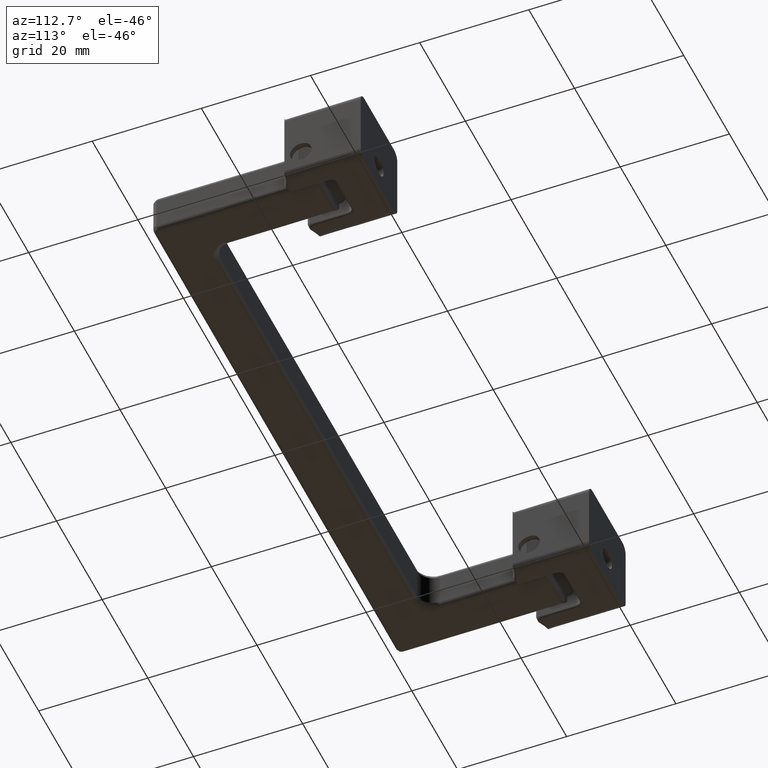
[diagram: clean part render]
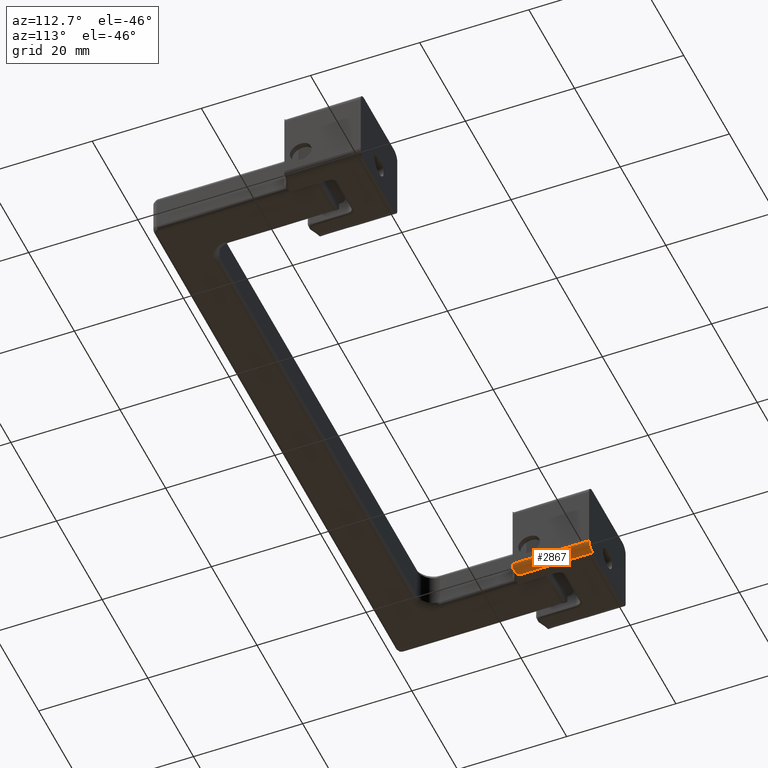
[diagram: same view with one face highlighted and labeled with its STEP entity id]
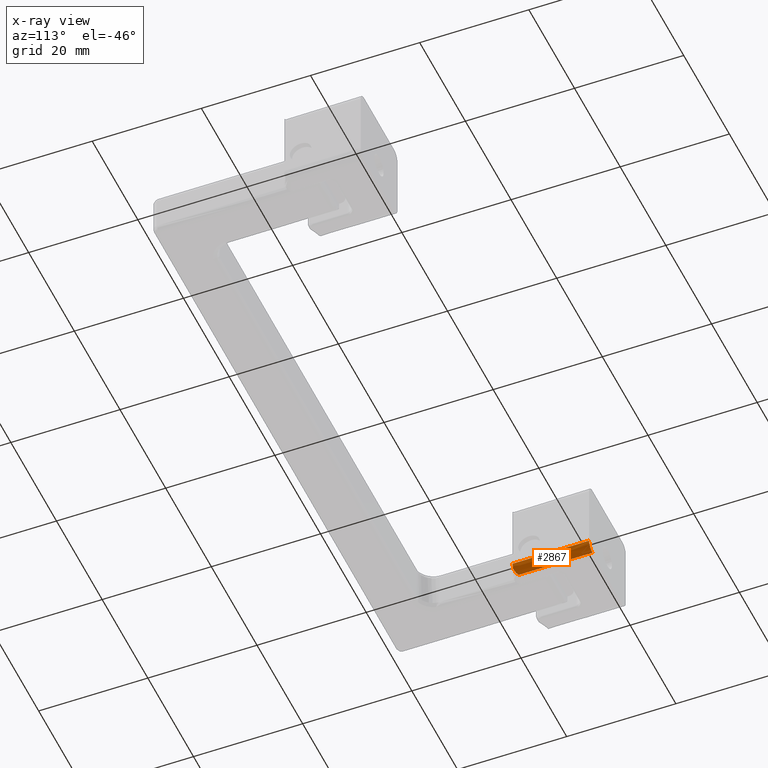
[diagram: x-ray of the same camera — body ghosted, the highlighted face saturated]
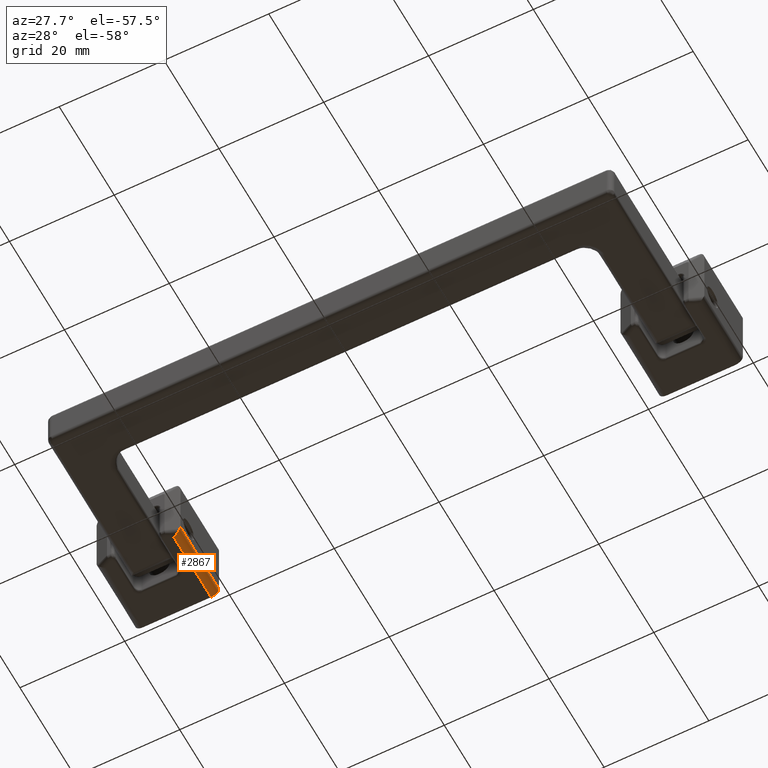
[diagram: same view with one face highlighted and labeled with its STEP entity id]
A machine part, auxiliary view. The second image highlights one B-rep face of the part: STEP entity #2867.
The next image is the same camera in x-ray: the body ghosted, the highlighted face saturated — about 0% of this face is hidden behind the body in this view.
A second angle (auxiliary view) of the same face is appended — the face is thin or edge-on in the first view.
In plain terms, the highlighted face is a freeform B-spline surface patch.
Its self-contained STEP definition (entity closure, byte-faithful):
#1917=CARTESIAN_POINT('',(47.913913562373097,-3.999999999999885,14.034314575050759));
#1918=VERTEX_POINT('',#1917);
#1919=CARTESIAN_POINT('',(46.499699999999997,-4.999999999999890,13.522967038573100));
#1920=VERTEX_POINT('',#1919);
#1921=CARTESIAN_POINT('',(47.913913562373097,-3.999999999999885,14.034314575050759));
#1922=CARTESIAN_POINT('',(47.886894090684493,-4.076422606620302,14.045122363726220));
#1923=CARTESIAN_POINT('',(47.853975061456573,-4.149946856227700,14.048968304548930));
#1924=CARTESIAN_POINT('',(47.795913847743662,-4.255944856069736,14.046370752161920));
#1925=CARTESIAN_POINT('',(47.775106016518308,-4.290559476828286,14.044092884755029));
#1926=CARTESIAN_POINT('',(47.730524618340972,-4.358321357219976,14.036893109580269));
#1927=CARTESIAN_POINT('',(47.706883316084209,-4.391240514091858,14.031983585426239));
#1928=CARTESIAN_POINT('',(47.633032342216538,-4.485881662496876,14.013969287705891));
#1929=CARTESIAN_POINT('',(47.579533913916173,-4.544107579680111,13.997552676467491));
#1930=CARTESIAN_POINT('',(47.493081677110069,-4.624608075499614,13.967482983251500));
#1931=CARTESIAN_POINT('',(47.463217857410562,-4.650278277912625,13.956535494633309));
#1932=CARTESIAN_POINT('',(47.402433895528169,-4.698573440407901,13.933336465094211));
#1933=CARTESIAN_POINT('',(47.371392080724590,-4.721316784854193,13.921043509635361));
#1934=CARTESIAN_POINT('',(47.276365325844331,-4.785549711945937,13.882317156855949));
#1935=CARTESIAN_POINT('',(47.210369419080067,-4.823124966546953,13.853996485796980));
#1936=CARTESIAN_POINT('',(47.073791962885259,-4.887850538950789,13.793458011709991));
#1937=CARTESIAN_POINT('',(47.004419285124023,-4.914453931749063,13.761779712327840));
#1938=CARTESIAN_POINT('',(46.863463633342853,-4.957085275772725,13.696310770450101));
#1939=CARTESIAN_POINT('',(46.791881367042222,-4.973106621732638,13.662514298800950));
#1940=CARTESIAN_POINT('',(46.682707905173643,-4.989248593822869,13.610569779147131));
#1941=CARTESIAN_POINT('',(46.646138082325052,-4.993285345203916,13.593103549388180));
#1942=CARTESIAN_POINT('',(46.591269683619160,-4.997314696909259,13.566848743156649));
#1943=CARTESIAN_POINT('',(46.572964051652633,-4.998321919904782,13.558081253717120));
#1944=CARTESIAN_POINT('',(46.536317310538543,-4.999665085777703,13.540521151777300));
#1945=CARTESIAN_POINT('',(46.517848558085632,-4.999999999999861,13.531667319904290));
#1946=CARTESIAN_POINT('',(46.499699999999997,-4.999999999999861,13.522967038573100));
#1947=B_SPLINE_CURVE_WITH_KNOTS('',3,(#1921,#1922,#1923,#1924,#1925,#1926,#1927,#1928,#1929,#1930,#1931,#1932,#1933,#1934,#1935,#1936,#1937,#1938,#1939,#1940,#1941,#1942,#1943,#1944,#1945,#1946),.UNSPECIFIED.,.F.,.U.,(4,2,2,2,2,2,2,2,2,2,2,2,4),(0.0,0.125000000000010,0.187500000000012,0.250000000000014,0.375000000000011,0.437500000000009,0.500000000000008,0.625000000000004,0.750000000000000,0.874999999999996,0.937499999999994,0.968749999999997,1.0),.UNSPECIFIED.);
#1948=EDGE_CURVE('',#1918,#1920,#1947,.T.);
#2808=CARTESIAN_POINT('',(47.999185987463342,-3.460734577538025,-0.351189910195670));
#2809=CARTESIAN_POINT('',(47.999185987463342,-3.460734577538025,14.407566065777351));
#2810=CARTESIAN_POINT('',(48.042438430815174,-5.112478749976267,-0.351189910195670));
#2811=CARTESIAN_POINT('',(48.042438430815174,-5.112478749976267,14.407566065777345));
#2812=CARTESIAN_POINT('',(46.394218489754103,-4.996286620603070,-0.351189910195670));
#2813=CARTESIAN_POINT('',(46.394218489754103,-4.996286620603070,14.407566065777345));
#2821=(BOUNDED_SURFACE()B_SPLINE_SURFACE(1,2,((#2808,#2810,#2812),(#2809,#2811,#2813)),.UNSPECIFIED.,.F.,.F.,.U.)B_SPLINE_SURFACE_WITH_KNOTS((2,2),(3,3),(0.0,14.758755975973020),(0.0,2.656715191530801),.UNSPECIFIED.)GEOMETRIC_REPRESENTATION_ITEM()RATIONAL_B_SPLINE_SURFACE(((1.0,0.670944016090426,0.996393058198067),(1.0,0.670944016090426,0.996393058198067)))REPRESENTATION_ITEM('')SURFACE());
#2822=CARTESIAN_POINT('',(47.999699999999997,-3.499999999999835,14.0));
#2823=VERTEX_POINT('',#2822);
#2824=CARTESIAN_POINT('',(47.913913562373097,-3.999999999999809,14.034314575050759));
#2825=CARTESIAN_POINT('',(47.999699999999997,-3.757359312880535,14.0));
#2826=CARTESIAN_POINT('',(47.999699999999997,-3.499999999999835,14.0));
#2834=(BOUNDED_CURVE()B_SPLINE_CURVE(2,(#2824,#2825,#2826),.UNSPECIFIED.,.F.,.U.)CURVE()GEOMETRIC_REPRESENTATION_ITEM()QUASI_UNIFORM_CURVE()RATIONAL_B_SPLINE_CURVE((1.0,0.985598559653489,1.0))REPRESENTATION_ITEM(''));
#2835=EDGE_CURVE('',#1918,#2823,#2834,.T.);
#2836=ORIENTED_EDGE('',*,*,#2835,.F.);
#2837=ORIENTED_EDGE('',*,*,#1948,.T.);
#2838=CARTESIAN_POINT('',(46.499699999999997,-4.999999999999890,0.0));
#2839=VERTEX_POINT('',#2838);
#2840=CARTESIAN_POINT('',(46.499699999999997,-4.999999999999890,0.0));
#2841=CARTESIAN_POINT('',(46.499699999999997,-4.999999999999890,13.522967038573100));
#2842=QUASI_UNIFORM_CURVE('',1,(#2840,#2841),.UNSPECIFIED.,.F.,.U.);
#2843=EDGE_CURVE('',#2839,#1920,#2842,.T.);
#2844=ORIENTED_EDGE('',*,*,#2843,.F.);
#2845=CARTESIAN_POINT('',(47.999699999999997,-3.499999999999835,0.0));
#2846=VERTEX_POINT('',#2845);
#2847=CARTESIAN_POINT('',(47.999699999999997,-3.499999999999835,0.0));
#2848=CARTESIAN_POINT('',(47.999699999999990,-4.999999999999836,0.0));
#2849=CARTESIAN_POINT('',(46.499699999999997,-4.999999999999836,0.0));
#2857=(BOUNDED_CURVE()B_SPLINE_CURVE(2,(#2847,#2848,#2849),.UNSPECIFIED.,.F.,.U.)CURVE()GEOMETRIC_REPRESENTATION_ITEM()QUASI_UNIFORM_CURVE()RATIONAL_B_SPLINE_CURVE((1.0,0.707106781186548,1.0))REPRESENTATION_ITEM(''));
#2858=EDGE_CURVE('',#2846,#2839,#2857,.T.);
#2859=ORIENTED_EDGE('',*,*,#2858,.F.);
#2860=CARTESIAN_POINT('',(47.999699999999997,-3.499999999999835,14.0));
#2861=CARTESIAN_POINT('',(47.999699999999997,-3.499999999999835,0.0));
#2862=QUASI_UNIFORM_CURVE('',1,(#2860,#2861),.UNSPECIFIED.,.F.,.U.);
#2863=EDGE_CURVE('',#2823,#2846,#2862,.T.);
#2864=ORIENTED_EDGE('',*,*,#2863,.F.);
#2865=EDGE_LOOP('',(#2836,#2837,#2844,#2859,#2864));
#2866=FACE_OUTER_BOUND('',#2865,.T.);
#2867=ADVANCED_FACE('',(#2866),#2821,.T.);